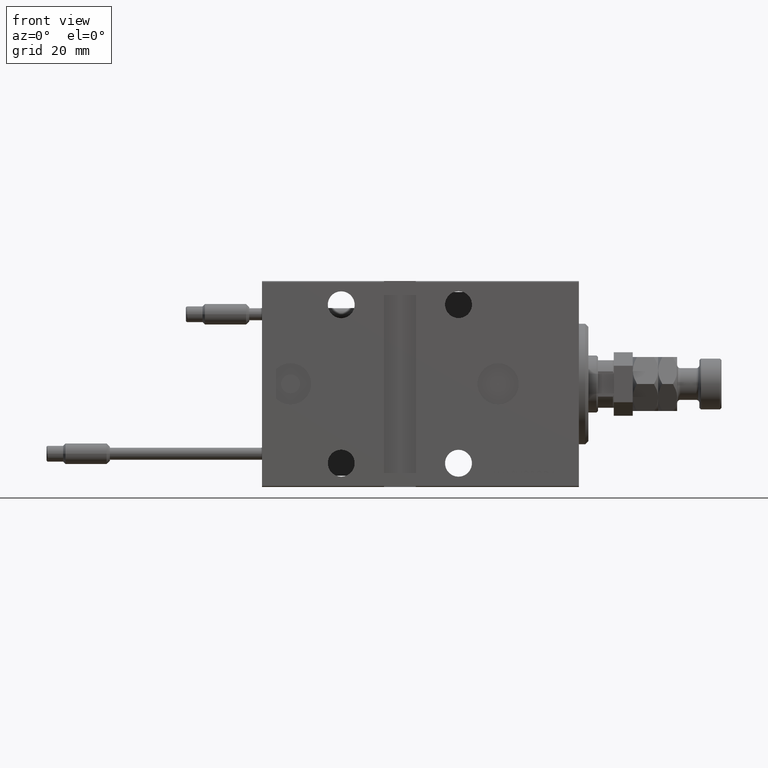
[diagram: clean part render]
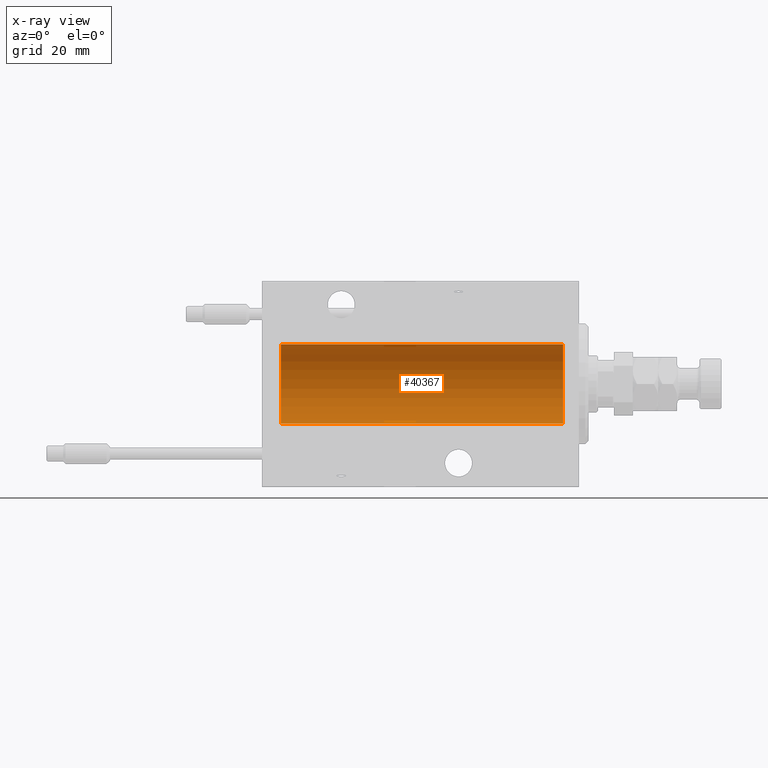
[diagram: x-ray — body ghosted, one internal face saturated and labeled with its STEP entity id]
A machine part, front view, then the same camera in x-ray: the body is ghosted and one INTERNAL B-rep face — a face not visible from any outside direction — is saturated and labeled: STEP entity #40367.
In plain terms, the highlighted cylindrical surface (partial cylindrical patch) has radius 12.5 mm, axis along (1, 0, -0).
Its self-contained STEP definition (entity closure, byte-faithful):
#440 = CIRCLE ( 'NONE', #24694, 12.50000000000000000 ) ;
#2563 = CYLINDRICAL_SURFACE ( 'NONE', #39189, 12.50000000000000000 ) ;
#9362 = LINE ( 'NONE', #20448, #12391 ) ;
#12391 = VECTOR ( 'NONE', #33216, 1000.000000000000000 ) ;
#14249 = EDGE_CURVE ( 'NONE', #44993, #50915, #27579, .T. ) ;
#18541 = CARTESIAN_POINT ( 'NONE',  ( 94.00000000000000000, 0.000000000000000000, 0.000000000000000000 ) ) ;
#20324 = VERTEX_POINT ( 'NONE', #26713 ) ;
#20448 = CARTESIAN_POINT ( 'NONE',  ( 94.00000000000000000, 0.000000000000000000, 12.50000000000000000 ) ) ;
#22466 = FACE_OUTER_BOUND ( 'NONE', #34778, .T. ) ;
#23042 = EDGE_CURVE ( 'NONE', #44993, #20324, #47319, .T. ) ;
#24694 = AXIS2_PLACEMENT_3D ( 'NONE', #26576, #39408, #47253 ) ;
#25368 = DIRECTION ( 'NONE',  ( -1.000000000000000000, 0.000000000000000000, 0.000000000000000000 ) ) ;
#25754 = CARTESIAN_POINT ( 'NONE',  ( 94.00000000000000000, 1.530808498934191521E-15, -12.50000000000000000 ) ) ;
#26576 = CARTESIAN_POINT ( 'NONE',  ( 5.000000000000004441, 0.000000000000000000, 0.000000000000000000 ) ) ;
#26713 = CARTESIAN_POINT ( 'NONE',  ( 5.000000000000004441, 1.530808498934191521E-15, -12.50000000000000000 ) ) ;
#27579 = CIRCLE ( 'NONE', #33467, 12.50000000000000000 ) ;
#29044 = DIRECTION ( 'NONE',  ( 0.000000000000000000, 0.000000000000000000, 1.000000000000000000 ) ) ;
#29845 = VERTEX_POINT ( 'NONE', #38574 ) ;
#30598 = EDGE_CURVE ( 'NONE', #20324, #29845, #440, .T. ) ;
#31371 = ORIENTED_EDGE ( 'NONE', *, *, #30598, .T. ) ;
#33216 = DIRECTION ( 'NONE',  ( -1.000000000000000000, -0.000000000000000000, -0.000000000000000000 ) ) ;
#33467 = AXIS2_PLACEMENT_3D ( 'NONE', #49214, #25368, #29044 ) ;
#34537 = DIRECTION ( 'NONE',  ( -1.000000000000000000, -0.000000000000000000, -0.000000000000000000 ) ) ;
#34778 = EDGE_LOOP ( 'NONE', ( #40172, #45240, #31371, #38174 ) ) ;
#36342 = DIRECTION ( 'NONE',  ( -1.000000000000000000, -0.000000000000000000, -0.000000000000000000 ) ) ;
#38174 = ORIENTED_EDGE ( 'NONE', *, *, #50053, .F. ) ;
#38574 = CARTESIAN_POINT ( 'NONE',  ( 5.000000000000004441, 0.000000000000000000, 12.50000000000000000 ) ) ;
#39189 = AXIS2_PLACEMENT_3D ( 'NONE', #18541, #34537, #46573 ) ;
#39408 = DIRECTION ( 'NONE',  ( -1.000000000000000000, 0.000000000000000000, 0.000000000000000000 ) ) ;
#40172 = ORIENTED_EDGE ( 'NONE', *, *, #14249, .F. ) ;
#40367 = ADVANCED_FACE ( 'NONE', ( #22466 ), #2563, .F. ) ;
#41346 = VECTOR ( 'NONE', #36342, 1000.000000000000000 ) ;
#44993 = VERTEX_POINT ( 'NONE', #25754 ) ;
#45240 = ORIENTED_EDGE ( 'NONE', *, *, #23042, .T. ) ;
#46573 = DIRECTION ( 'NONE',  ( 0.000000000000000000, 0.000000000000000000, 1.000000000000000000 ) ) ;
#47253 = DIRECTION ( 'NONE',  ( 0.000000000000000000, 0.000000000000000000, 1.000000000000000000 ) ) ;
#47319 = LINE ( 'NONE', #48355, #41346 ) ;
#47642 = CARTESIAN_POINT ( 'NONE',  ( 94.00000000000000000, 0.000000000000000000, 12.50000000000000000 ) ) ;
#48355 = CARTESIAN_POINT ( 'NONE',  ( 94.00000000000000000, 1.530808498934191521E-15, -12.50000000000000000 ) ) ;
#49214 = CARTESIAN_POINT ( 'NONE',  ( 94.00000000000000000, 0.000000000000000000, 0.000000000000000000 ) ) ;
#50053 = EDGE_CURVE ( 'NONE', #50915, #29845, #9362, .T. ) ;
#50915 = VERTEX_POINT ( 'NONE', #47642 ) ;